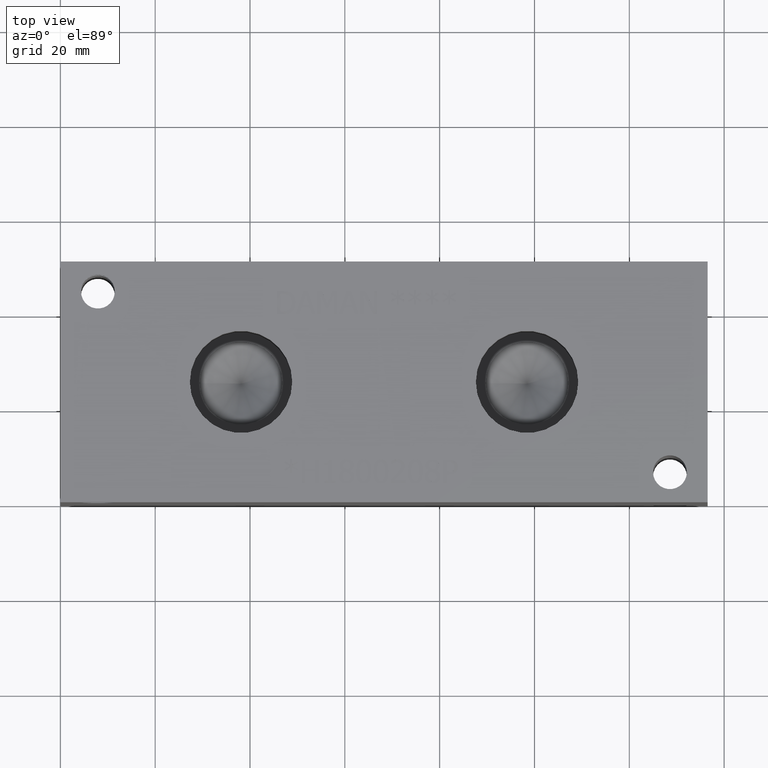
[diagram: clean part render]
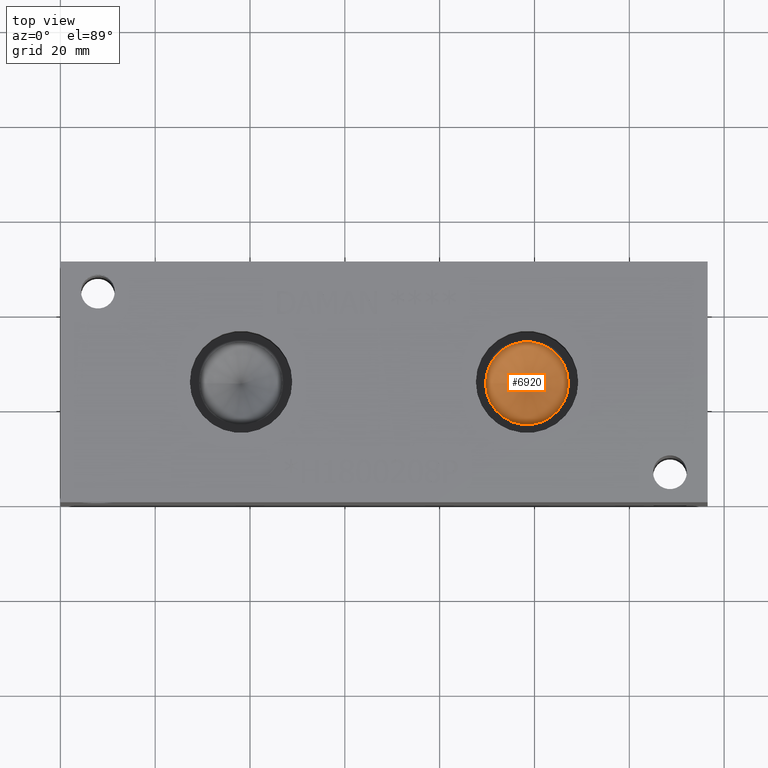
[diagram: same view with one face highlighted and labeled with its STEP entity id]
A machine part, top view. The second image highlights one B-rep face of the part: STEP entity #6920.
In plain terms, the highlighted conical surface has half-angle 60 deg.
Its self-contained STEP definition (entity closure, byte-faithful):
#45=CONICAL_SURFACE('',#7226,4.3688,1.0471975511966);
#83=CIRCLE('',#7227,8.7376);
#84=CIRCLE('',#7228,8.7376);
#708=FACE_OUTER_BOUND('',#1096,.T.);
#1096=EDGE_LOOP('',(#6089,#6090,#6091,#6092));
#1793=LINE('',#11760,#2476);
#2476=VECTOR('',#8483,4.3688);
#3309=VERTEX_POINT('',#11756);
#3310=VERTEX_POINT('',#11757);
#3311=VERTEX_POINT('',#11759);
#4248=EDGE_CURVE('',#3309,#3310,#83,.T.);
#4249=EDGE_CURVE('',#3310,#3311,#1793,.T.);
#4250=EDGE_CURVE('',#3310,#3309,#84,.T.);
#6089=ORIENTED_EDGE('',*,*,#4248,.T.);
#6090=ORIENTED_EDGE('',*,*,#4249,.T.);
#6091=ORIENTED_EDGE('',*,*,#4249,.F.);
#6092=ORIENTED_EDGE('',*,*,#4250,.T.);
#6920=ADVANCED_FACE('',(#708),#45,.F.);
#7226=AXIS2_PLACEMENT_3D('',#11755,#8479,#8480);
#7227=AXIS2_PLACEMENT_3D('',#11758,#8481,#8482);
#7228=AXIS2_PLACEMENT_3D('',#11761,#8484,#8485);
#8479=DIRECTION('center_axis',(0.,0.,1.));
#8480=DIRECTION('ref_axis',(1.,0.,0.));
#8481=DIRECTION('center_axis',(0.,0.,1.));
#8482=DIRECTION('ref_axis',(1.,0.,0.));
#8483=DIRECTION('',(0.866025403784439,1.06057523872491E-16,-0.5));
#8484=DIRECTION('center_axis',(0.,0.,1.));
#8485=DIRECTION('ref_axis',(1.,0.,0.));
#11755=CARTESIAN_POINT('Origin',(98.425,25.4,32.4062021439644));
#11756=CARTESIAN_POINT('',(107.1626,25.4,34.92853));
#11757=CARTESIAN_POINT('',(89.6874,25.4,34.92853));
#11758=CARTESIAN_POINT('Origin',(98.425,25.4,34.92853));
#11759=CARTESIAN_POINT('',(98.425,25.4,29.8838742879287));
#11760=CARTESIAN_POINT('',(94.0562,25.4,32.4062021439644));
#11761=CARTESIAN_POINT('Origin',(98.425,25.4,34.92853));